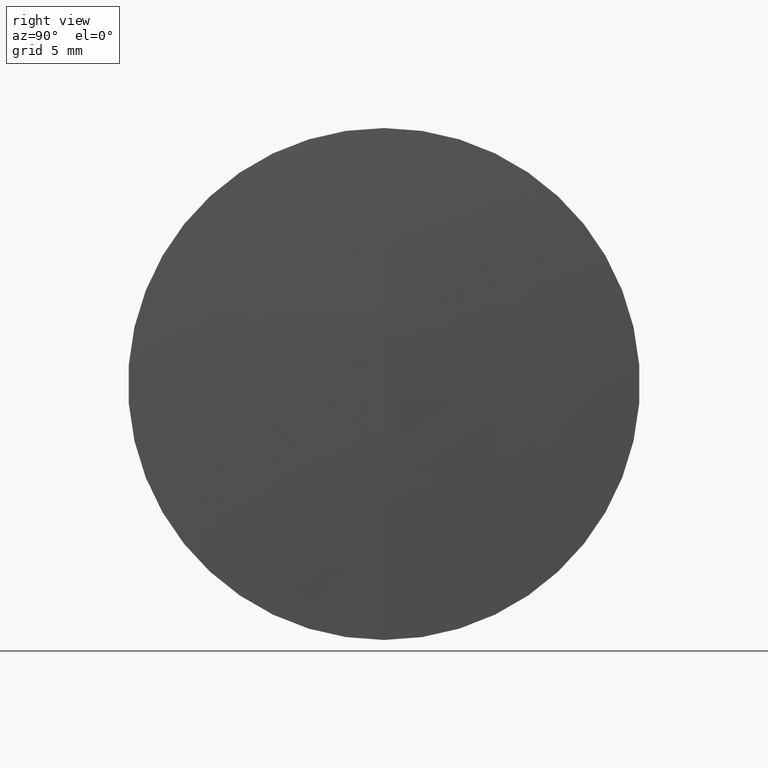
[diagram: clean part render]
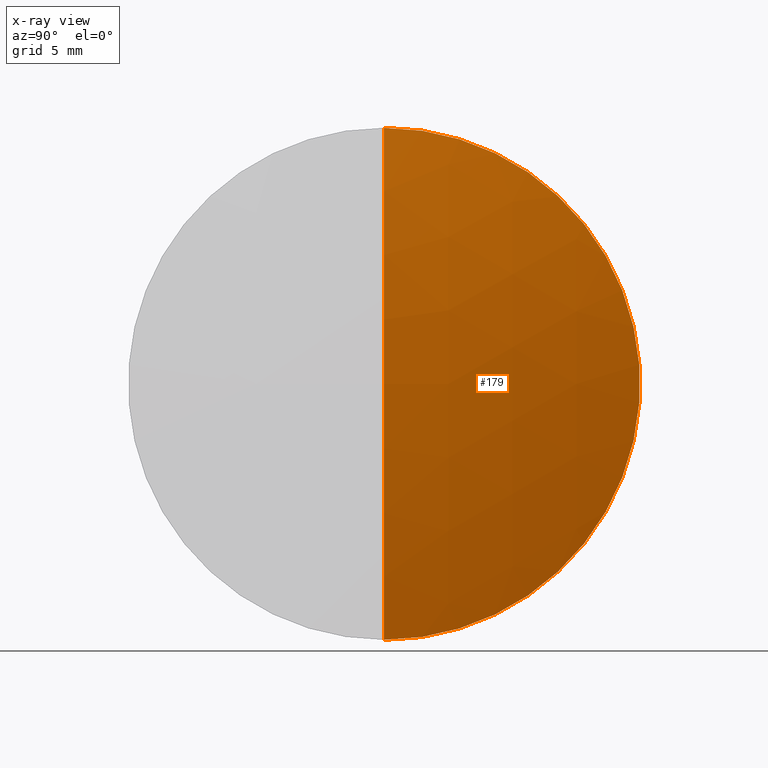
[diagram: x-ray — body ghosted, one internal face saturated and labeled with its STEP entity id]
A machine part, right view, then the same camera in x-ray: the body is ghosted and one INTERNAL B-rep face — a face not visible from any outside direction — is saturated and labeled: STEP entity #179.
In plain terms, the highlighted spherical surface has radius 53.7 mm.
Its self-contained STEP definition (entity closure, byte-faithful):
#12 = CIRCLE ( 'NONE', #332, 12.70000000000000600 ) ;
#33 = DIRECTION ( 'NONE',  ( 0.0000000000000000000, 1.000000000000000000, 0.0000000000000000000 ) ) ;
#37 = VERTEX_POINT ( 'NONE', #98 ) ;
#39 = CARTESIAN_POINT ( 'NONE',  ( 302.1767490561337600, 0.0000000000000000000, 12.70000000000000600 ) ) ;
#54 = CARTESIAN_POINT ( 'NONE',  ( 250.0001259381127700, 0.0000000000000000000, 6.763720156497999700E-015 ) ) ;
#66 = SPHERICAL_SURFACE ( 'NONE', #181, 53.69999999999999600 ) ;
#79 = CARTESIAN_POINT ( 'NONE',  ( 302.1767490561337600, 1.555301434917139200E-015, -12.70000000000000600 ) ) ;
#83 = DIRECTION ( 'NONE',  ( 0.0000000000000000000, 0.0000000000000000000, -1.000000000000000000 ) ) ;
#85 = AXIS2_PLACEMENT_3D ( 'NONE', #267, #96, #262 ) ;
#96 = DIRECTION ( 'NONE',  ( -0.0000000000000000000, 1.000000000000000000, 1.224646799147353200E-016 ) ) ;
#98 = CARTESIAN_POINT ( 'NONE',  ( 303.7001259381128200, 0.0000000000000000000, 1.005189681220864300E-014 ) ) ;
#116 = DIRECTION ( 'NONE',  ( -1.000000000000000000, -0.0000000000000000000, -0.0000000000000000000 ) ) ;
#123 = ORIENTED_EDGE ( 'NONE', *, *, #306, .F. ) ;
#126 = ORIENTED_EDGE ( 'NONE', *, *, #315, .T. ) ;
#139 = EDGE_LOOP ( 'NONE', ( #260, #126, #123 ) ) ;
#146 = AXIS2_PLACEMENT_3D ( 'NONE', #54, #245, #83 ) ;
#150 = FACE_OUTER_BOUND ( 'NONE', #139, .T. ) ;
#163 = CARTESIAN_POINT ( 'NONE',  ( 250.0001259381127700, 0.0000000000000000000, 6.763720156497999700E-015 ) ) ;
#172 = EDGE_CURVE ( 'NONE', #37, #309, #336, .T. ) ;
#179 = ADVANCED_FACE ( 'NONE', ( #150 ), #66, .T. ) ;
#181 = AXIS2_PLACEMENT_3D ( 'NONE', #163, #33, #278 ) ;
#195 = CIRCLE ( 'NONE', #85, 53.69999999999999600 ) ;
#230 = DIRECTION ( 'NONE',  ( 0.0000000000000000000, 0.0000000000000000000, 1.000000000000000000 ) ) ;
#245 = DIRECTION ( 'NONE',  ( 0.0000000000000000000, -1.000000000000000000, 0.0000000000000000000 ) ) ;
#260 = ORIENTED_EDGE ( 'NONE', *, *, #172, .F. ) ;
#262 = DIRECTION ( 'NONE',  ( 0.0000000000000000000, -1.224646799147353200E-016, 1.000000000000000000 ) ) ;
#267 = CARTESIAN_POINT ( 'NONE',  ( 250.0001259381127700, 0.0000000000000000000, 6.763720156497999700E-015 ) ) ;
#278 = DIRECTION ( 'NONE',  ( 0.0000000000000000000, 0.0000000000000000000, 1.000000000000000000 ) ) ;
#284 = CARTESIAN_POINT ( 'NONE',  ( 302.1767490561337600, 0.0000000000000000000, 0.0000000000000000000 ) ) ;
#306 = EDGE_CURVE ( 'NONE', #309, #321, #12, .T. ) ;
#309 = VERTEX_POINT ( 'NONE', #39 ) ;
#315 = EDGE_CURVE ( 'NONE', #37, #321, #195, .T. ) ;
#321 = VERTEX_POINT ( 'NONE', #79 ) ;
#332 = AXIS2_PLACEMENT_3D ( 'NONE', #284, #116, #230 ) ;
#336 = CIRCLE ( 'NONE', #146, 53.69999999999999600 ) ;